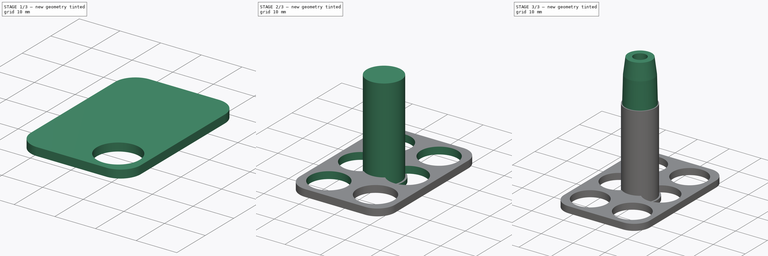
[diagram: build sequence overview — one tinted view per stage of 3, left to right]
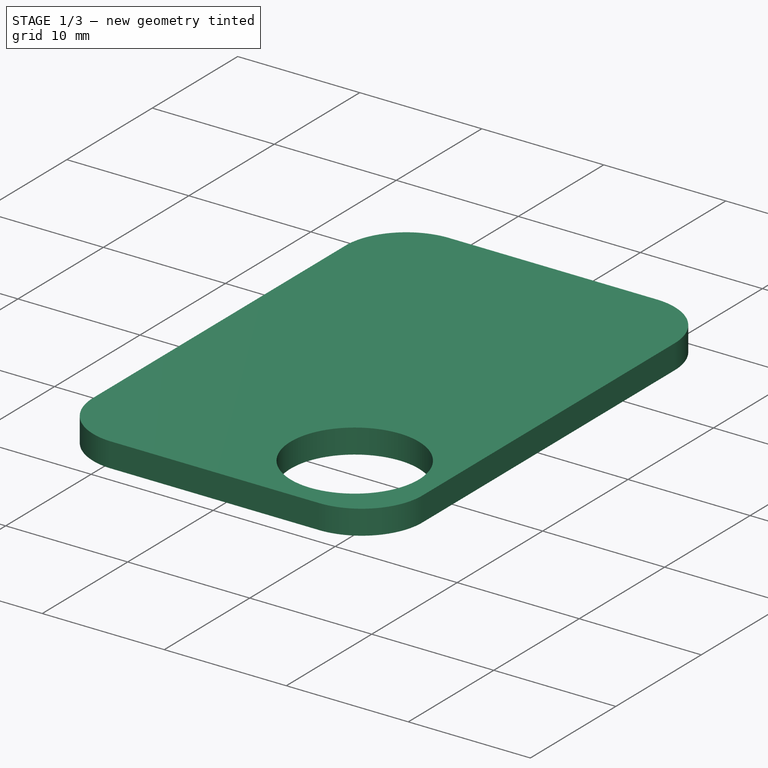
[diagram: stage 1 of 3 — iso view after this stage's code; geometry added in this stage tinted green]
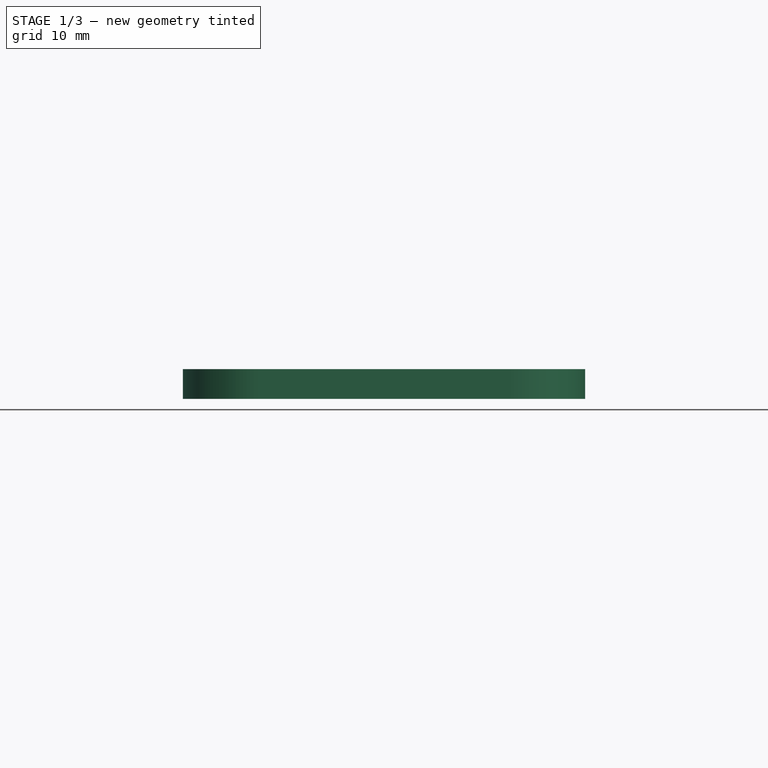
[diagram: stage 1 of 3 — front view after this stage's code; geometry added in this stage tinted green]
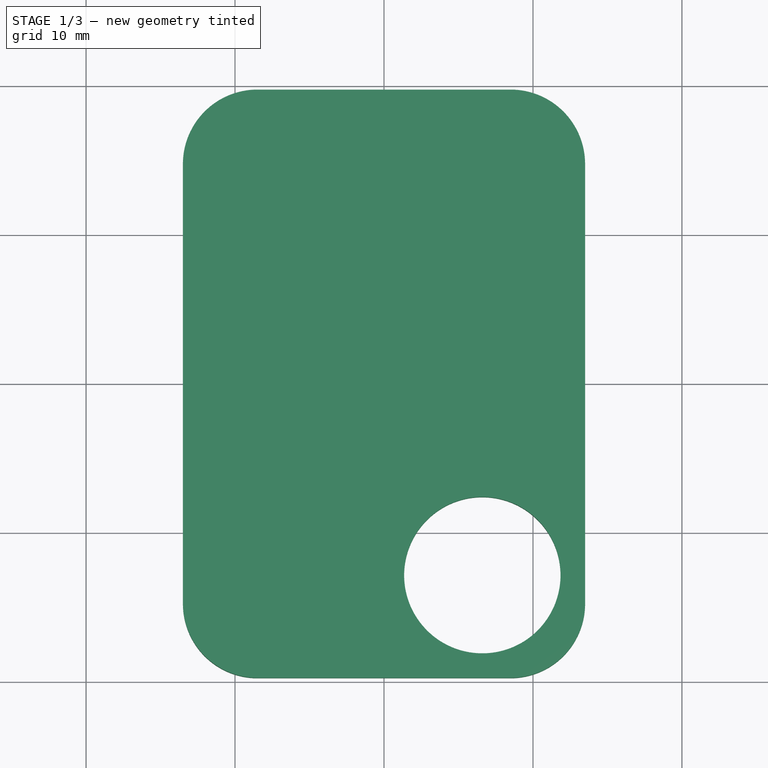
[diagram: stage 1 of 3 — top view after this stage's code; geometry added in this stage tinted green]
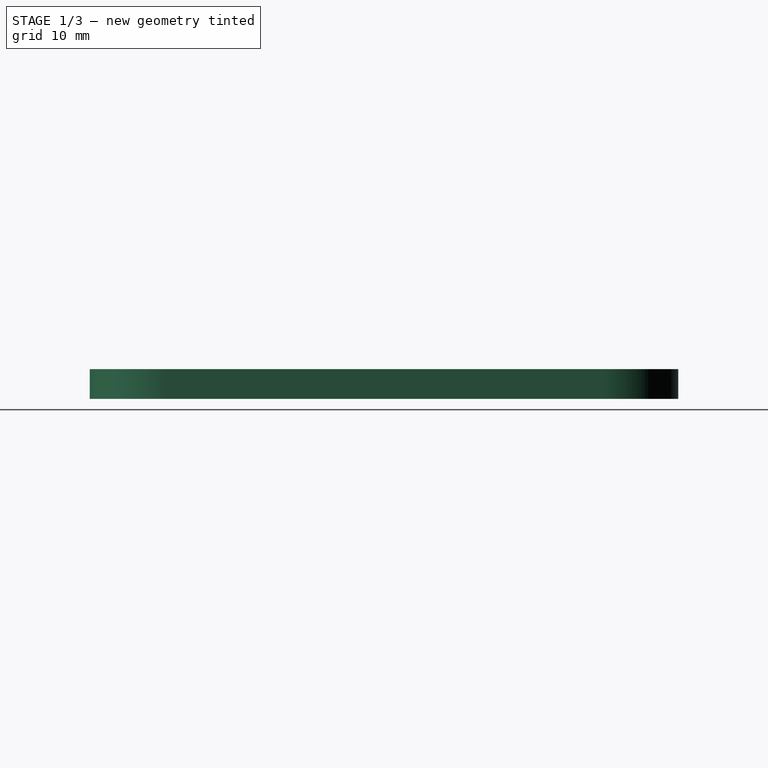
[diagram: stage 1 of 3 — right view after this stage's code; geometry added in this stage tinted green]
FCSTD DOCUMENT  (FreeCAD 0.17R13541 (Git))
Label: test119_ammorack
License: All rights reserved
LicenseURL: http://en.wikipedia.org/wiki/All_rights_reserved
objects: Sketcher::SketchObject×6, PartDesign::Pad×3, PartDesign::Pocket×2, PartDesign::Body×2, PartDesign::LinearPattern×2, PartDesign::Line×1, PartDesign::Plane×1, PartDesign::Revolution×1, Spreadsheet::Sheet×1, PartDesign::MultiTransform×1
note: 25 computed .brp shape members not serialized (recipe doc carries the construction recipe); baked Part::Feature solids carry a one-line shape summary decoded from their .brp

FEATURE [PartDesign::Body] Body  label="Cartridge"
  Group = -> [Sketch,Pad,Sketch001,Pad001,DatumLine,DatumPlane,Sketch002,Revolution,Sketch003,Pocket]
  Origin = -> Origin
  Placement = pos=(0,-7.1,-6.9) rot=(0,0,1;0rad)
  Tip = -> Pocket
FEATURE [Sketcher::SketchObject] Sketch004
  MapMode = 5
  Placement = pos=(0,0,0) rot=(0,1,0;3.14159rad)
  Support = -> [XY_Plane001]
  expr: Constraints[30] = Spreadsheet.Height
  expr: Constraints[29] = Spreadsheet.Width
  sketch-geometry (12):
    g0: LineSegment [constr] StartX=-13.5 StartY=-19.75 StartZ=0 EndX=13.5 EndY=-19.75 EndZ=0
    g1: LineSegment [constr] StartX=13.5 StartY=-19.75 StartZ=0 EndX=13.5 EndY=19.75 EndZ=0
    g2: LineSegment [constr] StartX=13.5 StartY=19.75 StartZ=0 EndX=-13.5 EndY=19.75 EndZ=0
    g3: LineSegment [constr] StartX=-13.5 StartY=19.75 StartZ=0 EndX=-13.5 EndY=-19.75 EndZ=0
    g4: LineSegment StartX=-8.5 StartY=19.75 StartZ=0 EndX=8.5 EndY=19.75 EndZ=0
    g5: LineSegment StartX=13.5 StartY=14.75 StartZ=0 EndX=13.5 EndY=-14.75 EndZ=0
    g6: LineSegment StartX=8.5 StartY=-19.75 StartZ=0 EndX=-8.5 EndY=-19.75 EndZ=0
    g7: LineSegment StartX=-13.5 StartY=-14.75 StartZ=0 EndX=-13.5 EndY=14.75 EndZ=0
    g8: ArcOfCircle CenterX=-8.5 CenterY=-14.75 CenterZ=0 NormalX=0 NormalY=0 NormalZ=1 AngleXU=0 Radius=5 StartAngle=3.14159 EndAngle=4.71239
    g9: ArcOfCircle CenterX=-8.5 CenterY=14.75 CenterZ=0 NormalX=0 NormalY=0 NormalZ=1 AngleXU=0 Radius=5 StartAngle=1.5708 EndAngle=3.14159
    g10: ArcOfCircle CenterX=8.5 CenterY=14.75 CenterZ=0 NormalX=0 NormalY=0 NormalZ=1 AngleXU=0 Radius=5 StartAngle=0 EndAngle=1.5708
    g11: ArcOfCircle CenterX=8.5 CenterY=-14.75 CenterZ=0 NormalX=0 NormalY=0 NormalZ=1 AngleXU=0 Radius=5 StartAngle=4.71239 EndAngle=6.28319
  constraints (31):
    c: Coincident(g0,g1)
    c: Coincident(g1,g2)
    c: Coincident(g2,g3)
    c: Coincident(g3,g0)
    c: Horizontal(g0)
    c: Horizontal(g2)
    c: Vertical(g1)
    c: Vertical(g3)
    c: Horizontal(g4)
    c: Horizontal(g6)
    c: Vertical(g5)
    c: Vertical(g7)
    c: Tangent(g6,g8) = 1.5708
    c: Tangent(g7,g8) = 1.5708
    c: Tangent(g7,g9) = 1.5708
    c: Tangent(g4,g9) = 1.5708
    c: Tangent(g4,g10) = 1.5708
    c: Tangent(g5,g10) = 1.5708
    c: Tangent(g5,g11) = 1.5708
    c: Tangent(g6,g11) = 1.5708
    c: Radius(g11) = 5
    c: Equal(g11,g8)
    c: Equal(g11,g9)
    c: Equal(g11,g10)
    c: PointOnObject(g7,g3)
    c: PointOnObject(g4,g2)
    c: PointOnObject(g5,g1)
    c: PointOnObject(g6,g0)
    c: Symmetric(g0,g1,g-1)
    c: Distance(g2) = 27
    c: Distance(g1) = 39.5
FEATURE [Spreadsheet::Sheet] Spreadsheet
  cells = A1=#Diameter; B1(Diameter)=9.8000000000000007; A2=#Rows; B2(Rows)=3; A3=#Columns; B3(Columns)=2; A4=#Spacing; B4(Spacing)=2; A5=#Width; B5(Width)==(Columns + 1) * Spacing + Columns * (Diameter + DiameterPadding); A6=#Height; B6(Height)==(Rows + 1) * Spacing + Rows * (Diameter + DiameterPadding); A7=#DiameterPadding; B7(DiameterPadding)=0.69999999999999996
FEATURE [PartDesign::Pad] Pad002
  Length = 2
  Length2 = 100
  Profile = -> Sketch004
  Reversed = true
  Type = 0
FEATURE [Sketcher::SketchObject] Sketch005
  MapMode = 5
  Placement = pos=(0,0,0) rot=(0,1,0;3.14159rad)
  Support = -> [XY_Plane001]
  expr: Constraints[19] = Spreadsheet.Diameter / 2 + Spreadsheet.Spacing
  expr: Constraints[11] = Spreadsheet.Height
  expr: Constraints[10] = Spreadsheet.Width
  expr: Constraints[0] = (Spreadsheet.Diameter + Spreadsheet.DiameterPadding) / 2
  sketch-geometry (7):
    g0: Circle CenterX=-6.6 CenterY=-12.85 CenterZ=0 NormalX=0 NormalY=0 NormalZ=1 AngleXU=0 Radius=5.25
    g1: LineSegment [constr] StartX=-13.5 StartY=19.75 StartZ=0 EndX=13.5 EndY=19.75 EndZ=0
    g2: LineSegment [constr] StartX=13.5 StartY=19.75 StartZ=0 EndX=13.5 EndY=-19.75 EndZ=0
    g3: LineSegment [constr] StartX=13.5 StartY=-19.75 StartZ=0 EndX=-13.5 EndY=-19.75 EndZ=0
    g4: LineSegment [constr] StartX=-13.5 StartY=-19.75 StartZ=0 EndX=-13.5 EndY=19.75 EndZ=0
    g5: LineSegment [constr] StartX=-13.5 StartY=-12.85 StartZ=0 EndX=-6.6 EndY=-12.85 EndZ=0
    g6: LineSegment [constr] StartX=-6.6 StartY=-12.85 StartZ=0 EndX=-6.6 EndY=-19.75 EndZ=0
  constraints (20):
    c: Radius(g0) = 5.25
    c: Coincident(g1,g2)
    c: Coincident(g2,g3)
    c: Coincident(g3,g4)
    c: Coincident(g4,g1)
    c: Horizontal(g1)
    c: Horizontal(g3)
    c: Vertical(g2)
    c: Vertical(g4)
    c: Symmetric(g3,g1,g-1)
    c: Distance(g1) = 27
    c: Distance(g2) = 39.5
    c: PointOnObject(g5,g4)
    c: Coincident(g5,g0)
    c: Horizontal(g5)
    c: Coincident(g5,g6)
    c: PointOnObject(g6,g3)
    c: Vertical(g6)
    c: Equal(g6,g5)
    c: Distance(g6) = 6.9
FEATURE [PartDesign::Pocket] Pocket001
  BaseFeature = -> Pad002
  Length = 5
  Length2 = 100
  Profile = -> Sketch005
  Type = 1
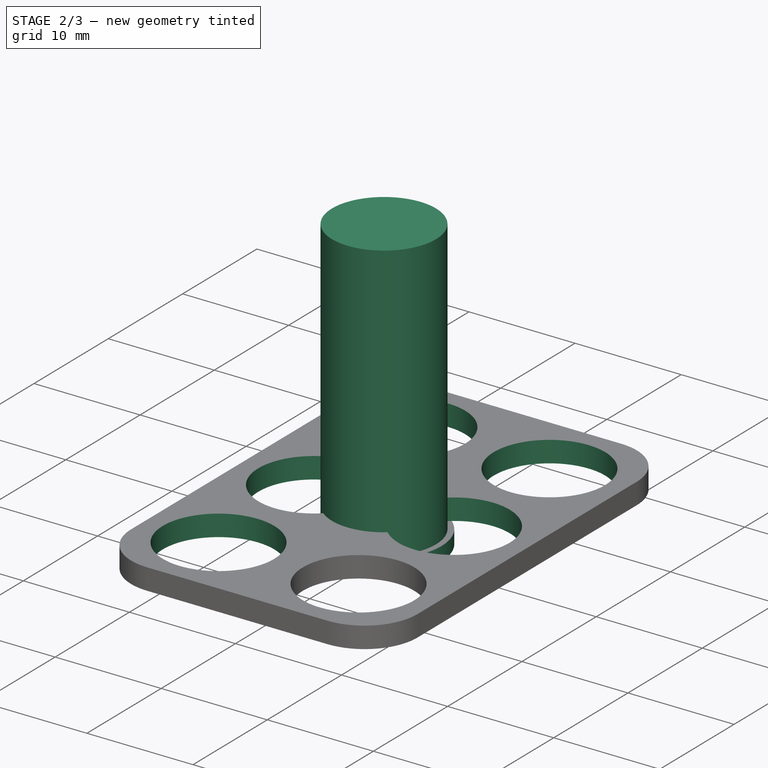
[diagram: stage 2 of 3 — iso view after this stage's code; geometry added in this stage tinted green]
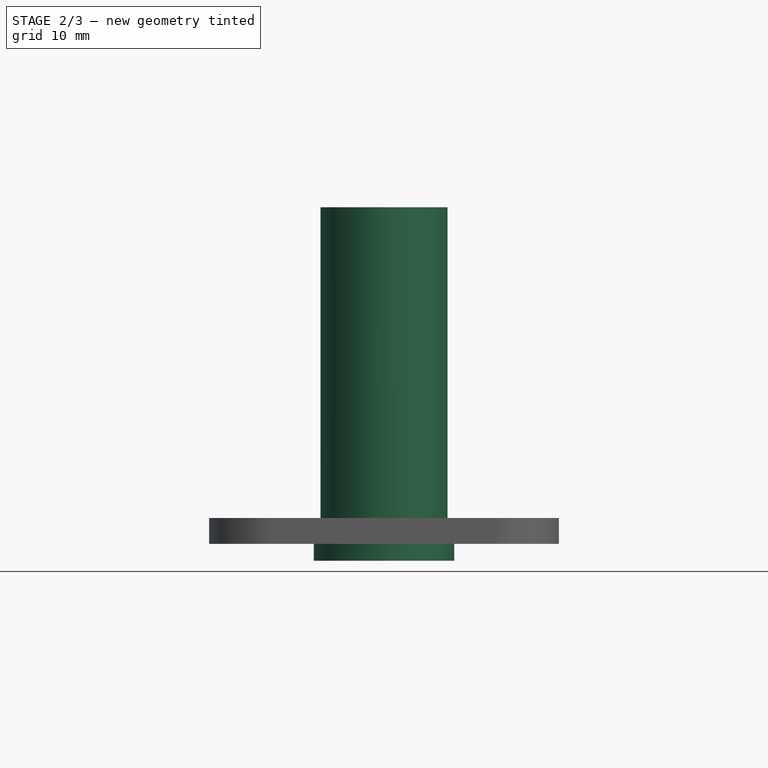
[diagram: stage 2 of 3 — front view after this stage's code; geometry added in this stage tinted green]
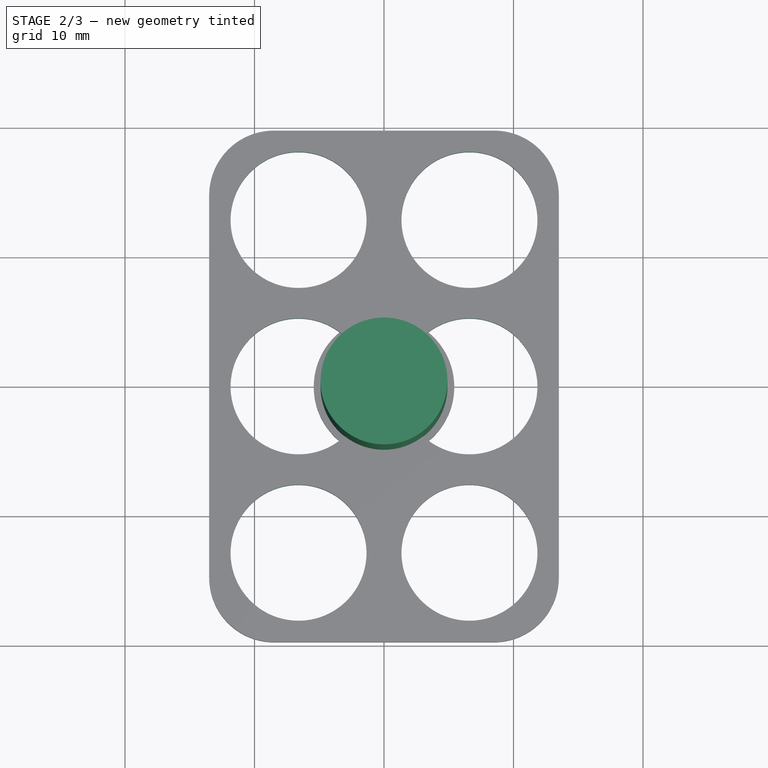
[diagram: stage 2 of 3 — top view after this stage's code; geometry added in this stage tinted green]
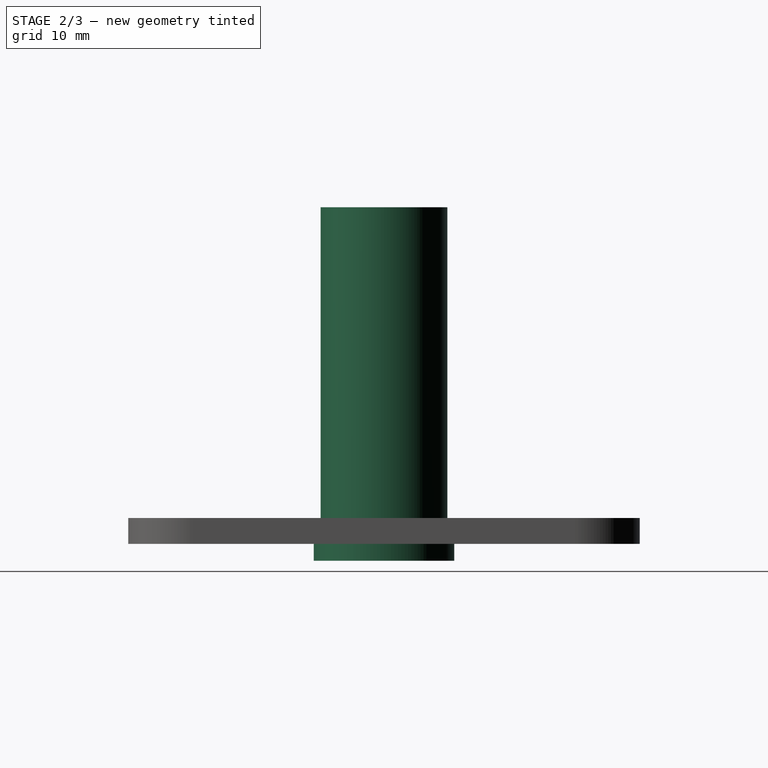
[diagram: stage 2 of 3 — right view after this stage's code; geometry added in this stage tinted green]
FEATURE [Sketcher::SketchObject] Sketch
  MapMode = 5
  Support = -> [XY_Plane]
  sketch-geometry (1):
    g0: Circle CenterX=0 CenterY=0 CenterZ=0 NormalX=0 NormalY=0 NormalZ=1 AngleXU=0 Radius=5.425
  constraints (2):
    c: Coincident(g0,g-1)
    c: Radius(g0) = 5.425
FEATURE [PartDesign::Pad] Pad
  Length = 1.3
  Length2 = 100
  Profile = -> Sketch
  Reversed = true
  Type = 0
FEATURE [Sketcher::SketchObject] Sketch001
  MapMode = 5
  Support = -> [XY_Plane]
  expr: Constraints[1] = Spreadsheet.Diameter / 2
  sketch-geometry (1):
    g0: Circle CenterX=0 CenterY=0 CenterZ=0 NormalX=0 NormalY=0 NormalZ=1 AngleXU=0 Radius=4.9
  constraints (2):
    c: Coincident(g0,g-1)
    c: Radius(g0) = 4.9
FEATURE [PartDesign::Pad] Pad001
  BaseFeature = -> Pad
  Length = 26
  Length2 = 100
  Profile = -> Sketch001
  Type = 0
FEATURE [PartDesign::LinearPattern] LinearPattern
  Direction = -> Sketch005 [V_Axis]
  Length = 25.7
  Occurrences = 3
  expr: Occurrences = Spreadsheet.Rows
  expr: Length = Spreadsheet.Height - Spreadsheet.Spacing * 2 - Spreadsheet.Diameter
FEATURE [PartDesign::LinearPattern] LinearPattern001
  Direction = -> Sketch005 [H_Axis]
  Length = 13.2
  Occurrences = 2
  expr: Length = Spreadsheet.Width - 2 * Spreadsheet.Spacing - Spreadsheet.Diameter
  expr: Occurrences = Spreadsheet.Columns
FEATURE [PartDesign::MultiTransform] MultiTransform
  BaseFeature = -> Pocket001
  Originals = -> [Pocket001]
  Transformations = -> [LinearPattern,LinearPattern001]
FEATURE [PartDesign::Body] Body001  label="Rack"
  Group = -> [Sketch004,Pad002,Sketch005,Pocket001,MultiTransform,LinearPattern,LinearPattern001]
  Origin = -> Origin001
  Tip = -> MultiTransform
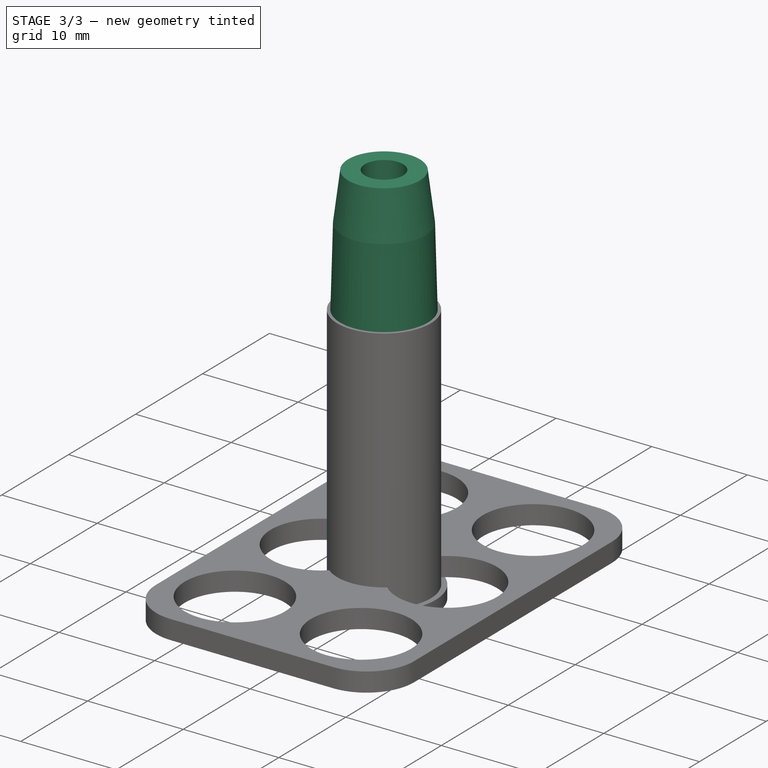
[diagram: stage 3 of 3 — iso view after this stage's code; geometry added in this stage tinted green]
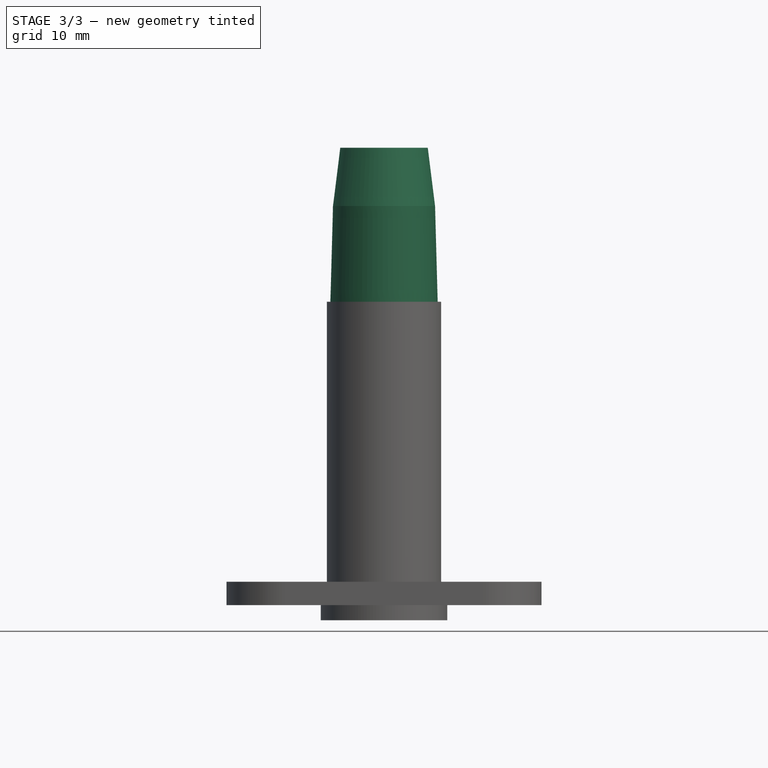
[diagram: stage 3 of 3 — front view after this stage's code; geometry added in this stage tinted green]
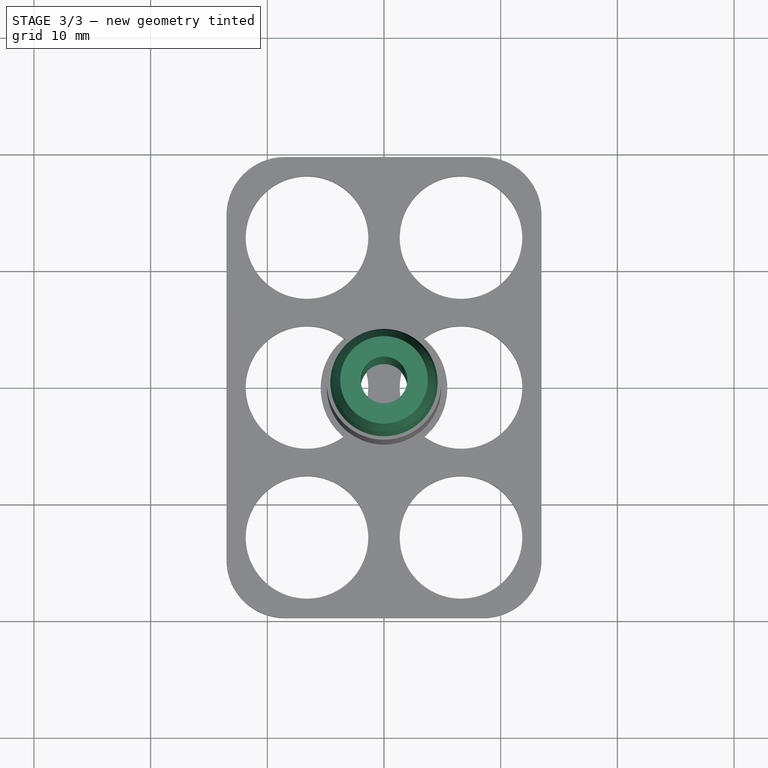
[diagram: stage 3 of 3 — top view after this stage's code; geometry added in this stage tinted green]
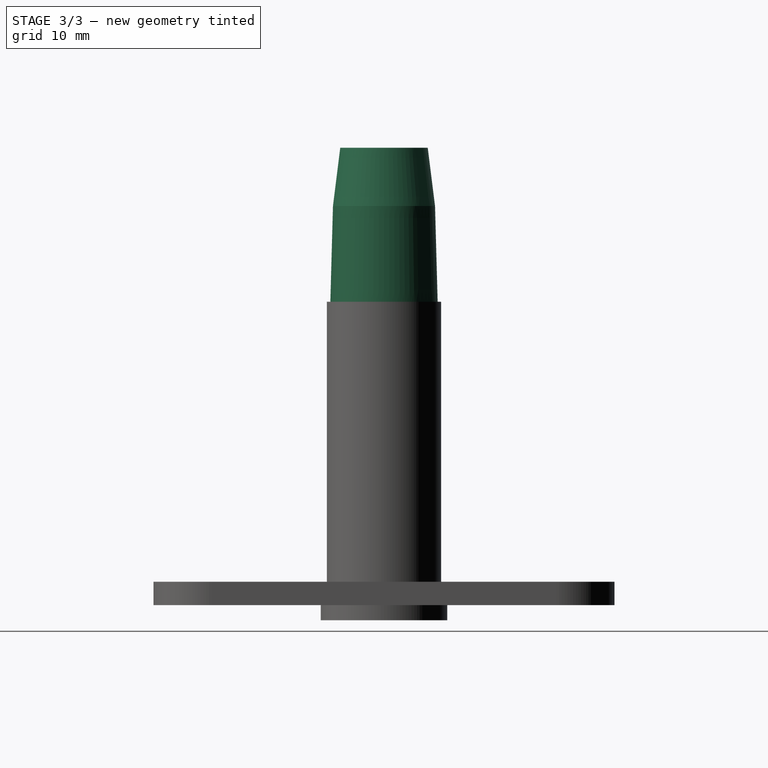
[diagram: stage 3 of 3 — right view after this stage's code; geometry added in this stage tinted green]
FEATURE [PartDesign::Line] DatumLine
  AttacherType = Attacher::AttachEngineLine
  MapMode = 42
  Support = -> [Pad001]
FEATURE [PartDesign::Plane] DatumPlane
  MapMode = 3
  Placement = pos=(0,0,0) rot=(1,0,0;1.5708rad)
  Support = -> [DatumLine]
FEATURE [Sketcher::SketchObject] Sketch002
  ExternalGeometry = -> [Pad001]
  MapMode = 5
  Placement = pos=(0,0,0) rot=(1,0,0;1.5708rad)
  Support = -> [DatumPlane]
  sketch-geometry (6):
    g0: LineSegment [constr] StartX=4.9 StartY=26 StartZ=0 EndX=0 EndY=26 EndZ=0
    g1: LineSegment StartX=0 StartY=26 StartZ=0 EndX=4.6 EndY=26 EndZ=0
    g2: LineSegment StartX=4.6 StartY=26 StartZ=0 EndX=4.375 EndY=34.2 EndZ=0
    g3: LineSegment StartX=0 StartY=39.2 StartZ=0 EndX=0 EndY=26 EndZ=0
    g4: LineSegment StartX=4.375 StartY=34.2 StartZ=0 EndX=3.75 EndY=39.2 EndZ=0
    g5: LineSegment StartX=3.75 StartY=39.2 StartZ=0 EndX=0 EndY=39.2 EndZ=0
  constraints (17):
    c: Coincident(g0,g-3)
    c: PointOnObject(g0,g-2)
    c: Horizontal(g0)
    c: Coincident(g1,g2)
    c: Coincident(g3,g1)
    c: Horizontal(g1)
    c: Vertical(g3)
    c: Coincident(g1,g0)
    c: Distance(g1) = 4.6
    c: DistanceY(g0,g2) = 8.2
    c: Distance(g2,g3) = 4.375
    c: Distance(g3) = 13.2
    c: Coincident(g4,g2)
    c: Coincident(g5,g4)
    c: Coincident(g5,g3)
    c: Horizontal(g5)
    c: Distance(g5) = 3.75
FEATURE [PartDesign::Revolution] Revolution
  Angle = 360
  Axis = (0,0,1)
  Base = (0,0,0)
  BaseFeature = -> Pad001
  Profile = -> Sketch002
  ReferenceAxis = -> Sketch002 [V_Axis]
  Reversed = true
FEATURE [Sketcher::SketchObject] Sketch003
  MapMode = 5
  Support = -> [XY_Plane]
  sketch-geometry (1):
    g0: Circle CenterX=0 CenterY=0 CenterZ=0 NormalX=0 NormalY=0 NormalZ=1 AngleXU=0 Radius=2
  constraints (2):
    c: Coincident(g0,g-1)
    c: Radius(g0) = 2
FEATURE [PartDesign::Pocket] Pocket
  BaseFeature = -> Revolution
  Length = 5
  Length2 = 100
  Midplane = true
  Profile = -> Sketch003
  Type = 1
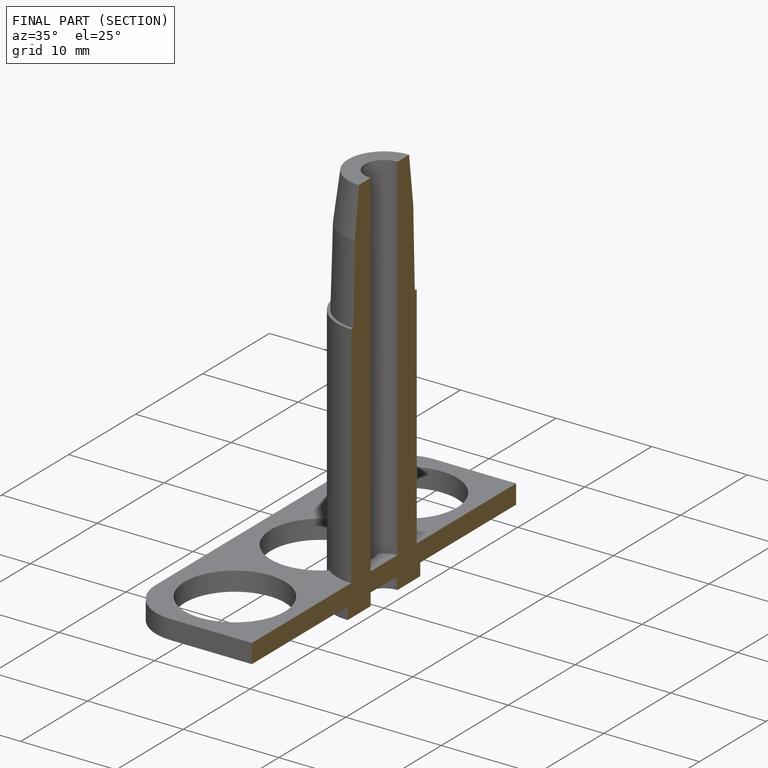
[diagram: finished part — half-section view (interior)]
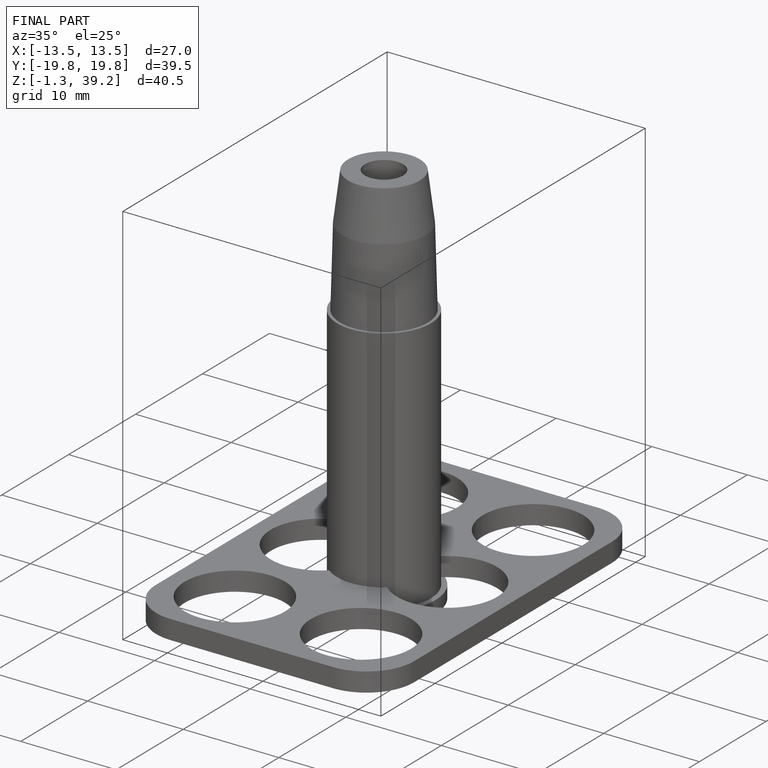
[diagram: finished part — iso view with bounding-box wireframe]
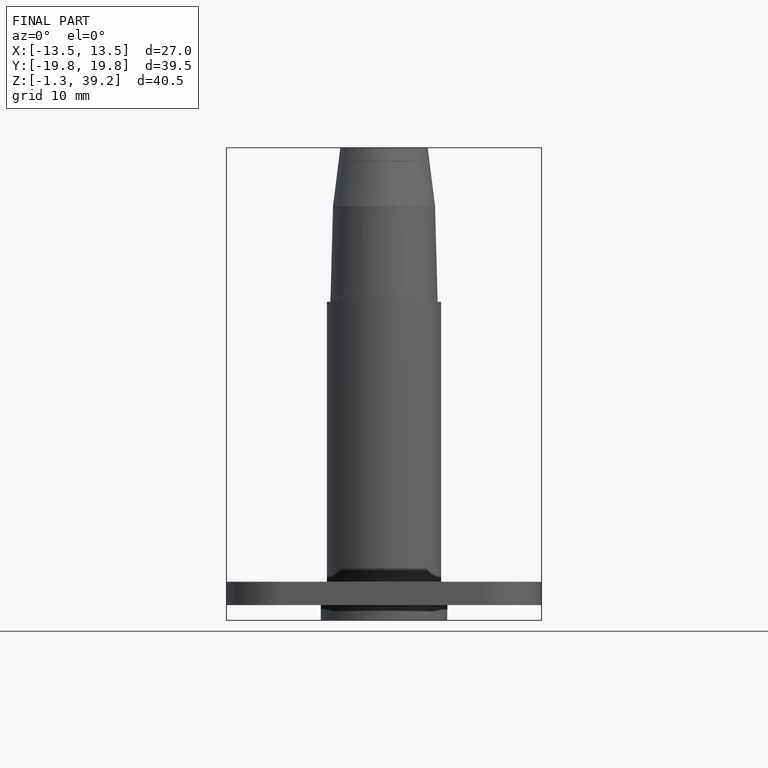
[diagram: finished part — front view with bounding-box wireframe]
